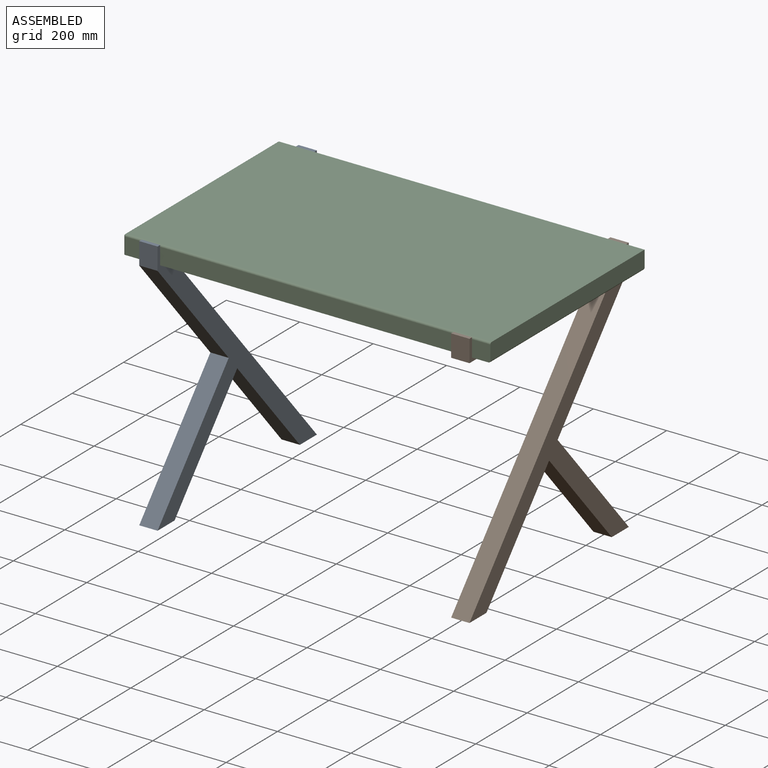
[diagram: assembled view]
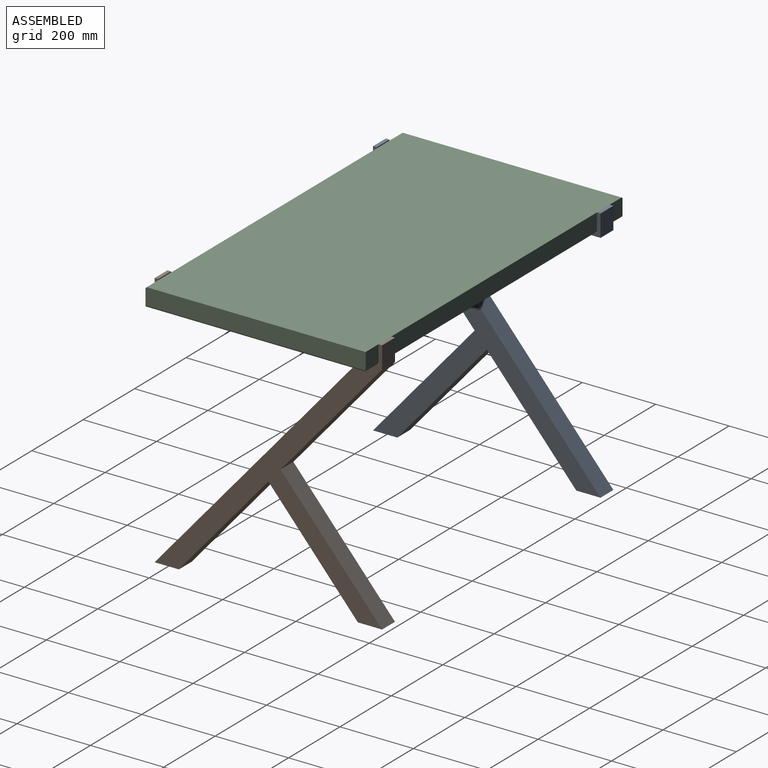
[diagram: assembled view, second angle]
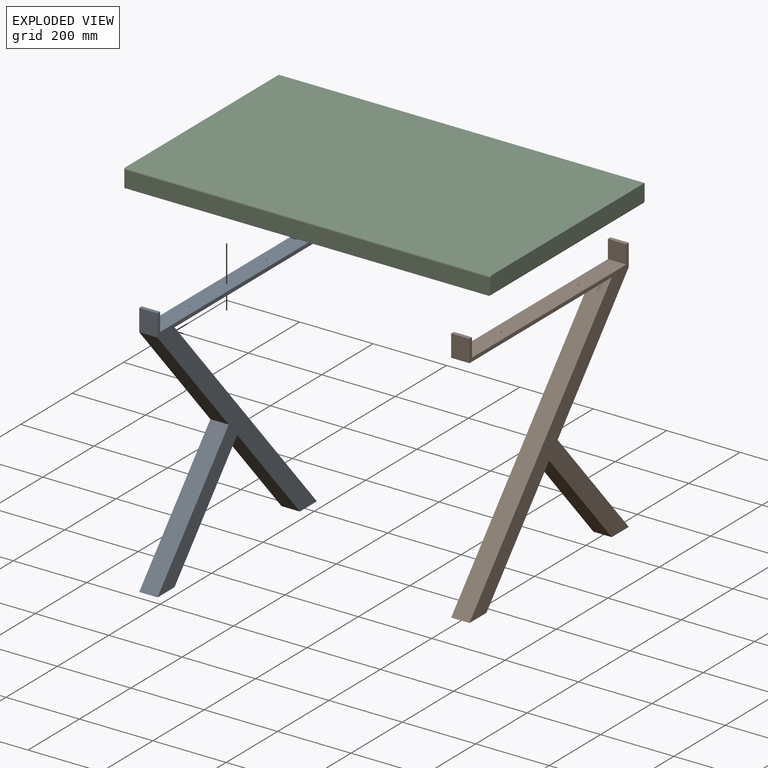
[diagram: exploded view]
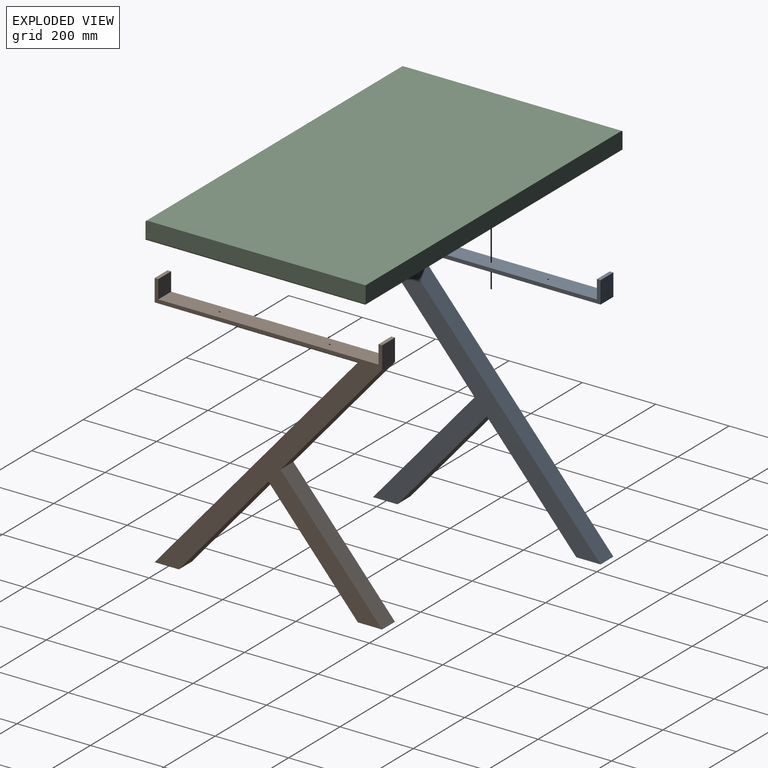
[diagram: exploded view, second angle]
ASSEMBLY  parts=3 mates=4
PART A: 19 faces, bbox 50x620x700 mm
  f0: plane 66.12x50mm, normal (0,0,-1), area 3306.2mm2, adj f1,f14,f15,f16
  f1: plane 320x276.94mm, normal (0,0.76,0.65), area 21159.8mm2, adj f0,f2,f15,f16
  f2: plane 320x276.94mm, normal (0,0.76,-0.65), area 21159.8mm2, adj f1,f3,f15,f16
  f3: plane 60x50mm, normal (0,1,0), area 3000mm2, adj f2,f4,f15,f16
  f4: plane 50x10mm, normal (0,0,1), area 500mm2, adj f3,f5,f15,f16
  f5: plane 50x50mm, normal (0,-1,0), area 2500mm2, adj f4,f6,f15,f16
  f6: plane 600x50mm, normal (0,0,1), area 29960.7mm2, adj f5,f7,f15,f16,f17,f18
  f7: plane 50x50mm, normal (0,1,0), area 2500mm2, adj f6,f8,f15,f16
  f8: plane 50x10mm, normal (0,0,1), area 500mm2, adj f7,f9,f15,f16
  f9: plane 60x50mm, normal (0,-1,0), area 3000mm2, adj f8,f10,f15,f16
  f10: plane 553.88x50mm, normal (0,0,-1), area 27654.5mm2, adj f9,f11,f15,f16,f17,f18
  f11: plane 640x553.88mm, normal (0,-0.76,0.65), area 42319.6mm2, adj f10,f12,f15,f16
  f12: plane 66.12x50mm, normal (0,0,-1), area 3306.2mm2, adj f11,f13,f15,f16
  f13: plane 281.8x243.88mm, normal (0,0.76,-0.65), area 18633.6mm2, adj f12,f14,f15,f16
  f14: plane 281.8x243.88mm, normal (0,-0.76,-0.65), area 18633.6mm2, adj f0,f13,f15,f16
  f15: plane 700x620mm, normal (1,0,0), area 69416.3mm2, adj f0,f1,f2,f3,f4,f5,f6,f7
  f16: plane 700x620mm, normal (-1,0,0), area 69416.3mm2, adj f0,f1,f2,f3,f4,f5,f6,f7
  f17: cylinder r=2.5mm len=10mm, axis (0,0,1), area 157.1mm2, adj f6,f10
  f18: cylinder r=2.5mm len=10mm, axis (0,0,1), area 157.1mm2, adj f6,f10
PART B: same geometry as A
PART C: 20 faces, bbox 1000x600x50 mm
  f0: plane 595x45mm, normal (1,0,0), area 26769.6mm2, adj f1,f4,f14,f17,f18
  f1: plane 1000x45mm, normal (0,1,0), area 44994.6mm2, adj f0,f2,f5,f14,f18
  f2: plane 600x45mm, normal (-1,0,0), area 26994.6mm2, adj f1,f3,f5,f15,f19
  f3: plane 995x45mm, normal (0,-1,0), area 44769.6mm2, adj f2,f4,f15,f17,f19
  f4: plane 995x595mm, normal (0,0,1), area 591941.1mm2, adj f0,f3,f7,f9,f11,f13,f17,f18
  f5: plane 995x595mm, normal (0,0,-1), area 592025mm2, adj f1,f2,f14,f15
  f6: cone r=0mm half-angle=59deg, axis (0,0,1), area 22.9mm2, adj f7
  f7: cylinder r=2.5mm len=20mm, axis (0,0,1), area 314.2mm2, adj f4,f6
  f8: cone r=0mm half-angle=59deg, axis (0,0,1), area 22.9mm2, adj f9
  f9: cylinder r=2.5mm len=20mm, axis (0,0,1), area 314.2mm2, adj f4,f8
  f10: cone r=0mm half-angle=59deg, axis (0,0,1), area 22.9mm2, adj f11
  f11: cylinder r=2.5mm len=20mm, axis (0,0,1), area 314.2mm2, adj f4,f10
  f12: cone r=0mm half-angle=59deg, axis (0,0,1), area 22.9mm2, adj f13
  f13: cylinder r=2.5mm len=20mm, axis (0,0,1), area 314.2mm2, adj f4,f12
  f14: cylinder r=5mm len=595mm, axis (0,1,0), area 4673.1mm2, adj f0,f1,f5,f16
  f15: cylinder r=5mm len=995mm, axis (1,0,0), area 7814.7mm2, adj f2,f3,f5,f16
  f16: sphere r=5mm, area 39.3mm2, adj f14,f15,f17
  f17: cylinder r=5mm len=45mm, axis (0,0,-1), area 353.4mm2, adj f0,f3,f4,f16
  f18: cylinder r=5mm len=1000mm, axis (1,0,0), area 7839.7mm2, adj f0,f1,f4,f19
  f19: cylinder r=5mm len=600mm, axis (0,1,0), area 4698.1mm2, adj f2,f3,f4,f18
PLACE A rot(axis=(0,0,-1),180deg) t=(-800,-610,-650)mm
PLACE B t=(0,10,-650)mm
PLACE C rot(axis=(0,-1,0),180deg) t=(-400,-300,50)mm
MATE fastened C.f6 <-> A.f17  axis (0,0,-1) through (-825,-150,0)mm
MATE planar C.f8 <-> A.f6  axis (0,0,-1) through (-825,-450,0)mm
MATE planar C.f4 <-> B.f6  axis (0,0,-1) through (-402.5,-302.5,0)mm
MATE fastened B.f18 <-> C.f12  axis (0,0,1) through (25,-150,0)mm
